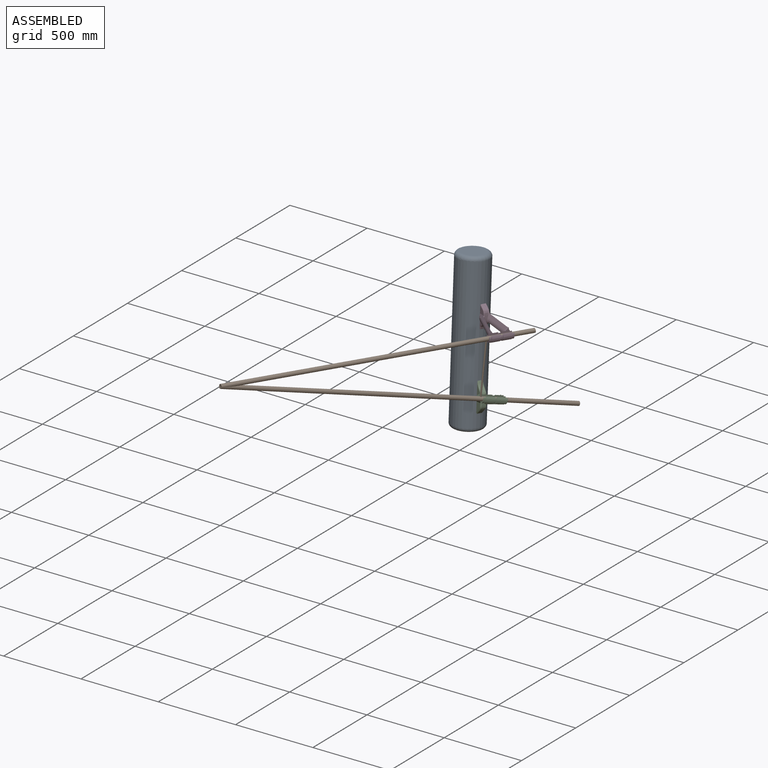
[diagram: assembled view]
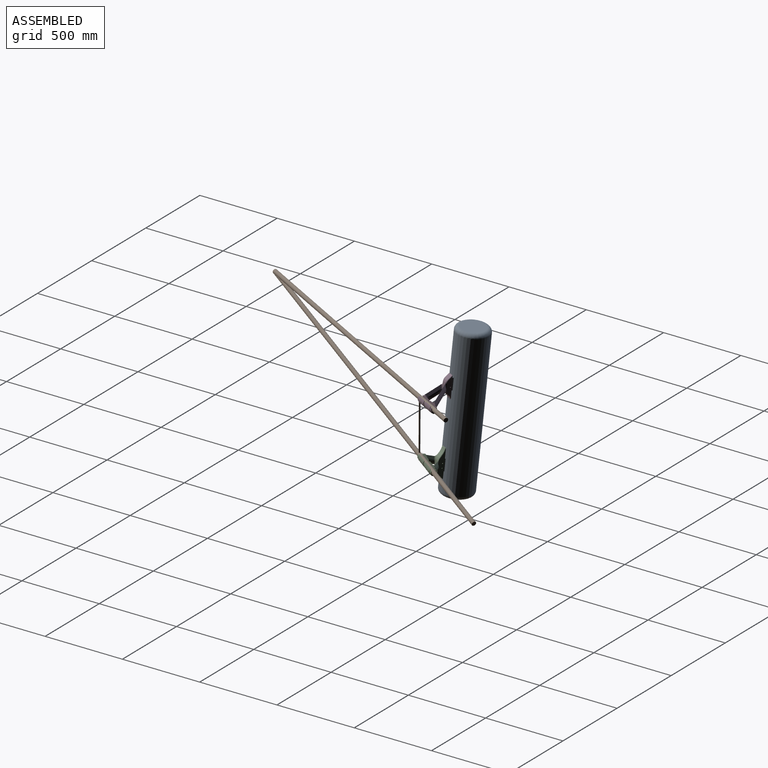
[diagram: assembled view, second angle]
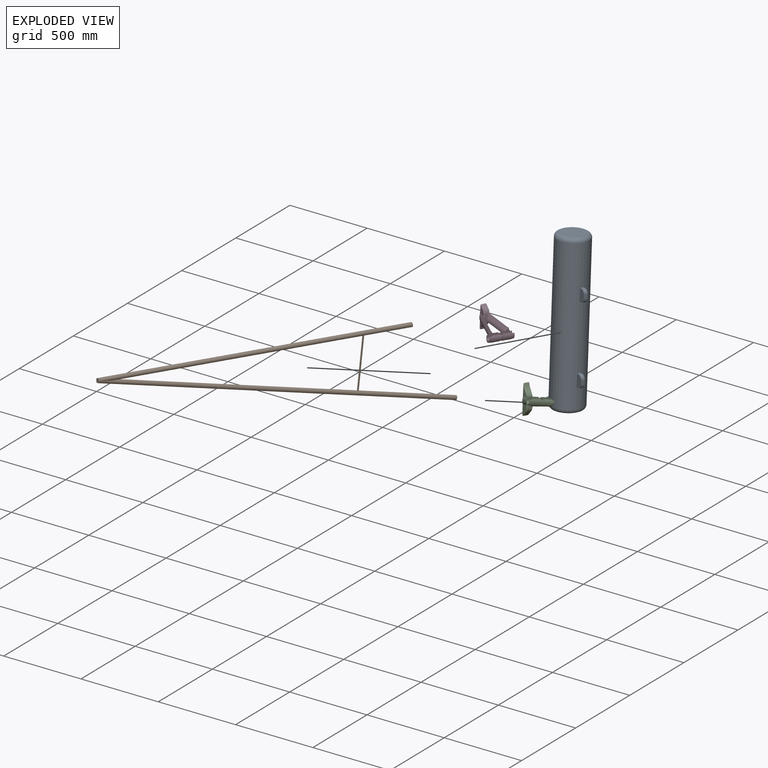
[diagram: exploded view]
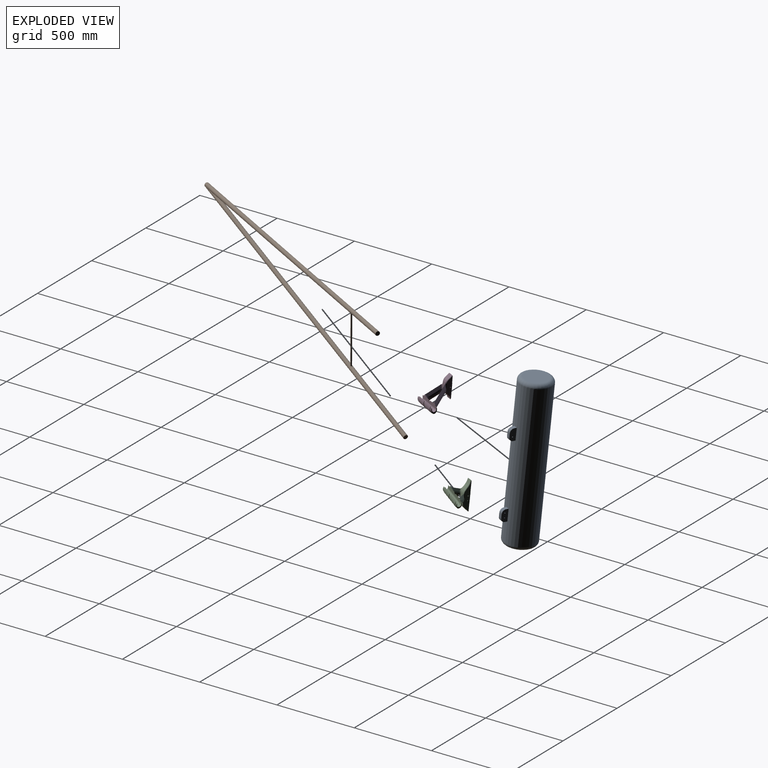
[diagram: exploded view, second angle]
ASSEMBLY  parts=4 mates=3
PART A: 27 faces, bbox 219.9x990.6x252.2 mm
  f0: plane 406.4x22.86mm, normal (0,0,1), area 9290.3mm2, adj f5,f8,f14
  f1: plane 25.4x22.86mm, normal (0,0,1), area 580.6mm2, adj f2,f3,f25,f26
  f2: plane 76.2x41.3mm, normal (-1,0,0), area 2834.6mm2, adj f1,f4,f5,f8,f17,f18,f25,f26
  f3: plane 76.2x41.3mm, normal (1,0,0), area 2834.6mm2, adj f1,f4,f5,f8,f17,f18,f25,f26
  f4: plane 22.86x15.9mm, normal (0,-1,0), area 363.5mm2, adj f2,f3,f7,f26
  f5: plane 22.86x15.9mm, normal (0,1,0), area 363.5mm2, adj f0,f2,f3,f25
  f6: plane 254x22.86mm, normal (0,0,1), area 5806.4mm2, adj f8,f15,f22
  f7: plane 127x22.86mm, normal (0,0,1), area 2903.2mm2, adj f4,f8,f20
  f8: cylinder r=101.6mm len=939.8mm, axis (0,-1,0), area 578412.2mm2, adj f0,f2,f3,f6,f7,f12,f13,f19
  f9: plane 152.4x151.76mm, normal (0,1,0), area 18233mm2, adj f21,f22
  f10: plane 152.4x151.76mm, normal (0,-1,0), area 18233mm2, adj f19,f20
  f11: plane 25.4x22.86mm, normal (0,0,1), area 580.6mm2, adj f12,f13,f23,f24
  f12: plane 76.2x41.3mm, normal (-1,0,0), area 2852.4mm2, adj f8,f11,f14,f15,f16,f23,f24
  f13: plane 76.2x41.3mm, normal (1,0,0), area 2852.4mm2, adj f8,f11,f14,f15,f16,f23,f24
  f14: plane 22.86x15.9mm, normal (0,-1,0), area 363.5mm2, adj f0,f12,f13,f23
  f15: plane 22.86x15.9mm, normal (0,1,0), area 363.5mm2, adj f6,f12,f13,f24
  f16: cylinder r=2.38mm len=22.86mm, axis (1,0,0), area 342mm2, adj f12,f13
  f17: cylinder r=2.38mm len=22.86mm, axis (1,0,0), area 342mm2, adj f2,f3
  f18: cylinder r=2.38mm len=22.86mm, axis (1,0,0), area 342mm2, adj f2,f3
  f19: torus R=76.2mm, axis (0,-1,0), area 22285.3mm2, adj f8,f10,f20
  f20: cylinder r=25.4mm len=25.4mm, axis (-1,0,0), area 868.7mm2, adj f7,f10,f19
  f21: torus R=76.2mm, axis (0,-1,0), area 22285.3mm2, adj f8,f9,f22
  f22: cylinder r=25.4mm len=25.4mm, axis (1,0,0), area 868.7mm2, adj f6,f9,f21
  f23: cylinder r=25.4mm len=25.4mm, axis (1,0,0), area 912.1mm2, adj f11,f12,f13,f14
  f24: cylinder r=25.4mm len=25.4mm, axis (-1,0,0), area 912.1mm2, adj f11,f12,f13,f15
  f25: cylinder r=25.4mm len=25.4mm, axis (-1,0,0), area 912.1mm2, adj f1,f2,f3,f5
  f26: cylinder r=25.4mm len=25.4mm, axis (1,0,0), area 912.1mm2, adj f1,f2,f3,f4
PART B: 7 faces, bbox 499.6x2217.7x26.7 mm
  f0: cylinder r=13.33mm len=1898.16mm, axis (-0.03,1,0), area 155695.2mm2, adj f1,f2,f3,f6
  f1: cylinder r=13.33mm len=2217.72mm, axis (0.18,0.98,0), area 185279mm2, adj f0,f4,f5,f6
  f2: plane 26.67x13.33mm, normal (0.03,-1,0), area 279.3mm2, adj f0,f4
  f3: plane 26.67x26.66mm, normal (-0.03,1,0), area 558.6mm2, adj f0
  f4: plane 26.67x13.11mm, normal (-0.18,-0.98,0), area 279.3mm2, adj f1,f2
  f5: plane 26.67x26.21mm, normal (0.18,0.98,0), area 558.6mm2, adj f1
  f6: cylinder r=4.76mm len=325.52mm, axis (1,0,0), area 9707.4mm2, adj f0,f1
PART C: 131 faces, bbox 199x145x156.8 mm
  f0: bspline ~8.17x4.92mm, area 0.1mm2, adj f2,f104,f122
  f1: bspline ~27.03x19.97mm, area 54.9mm2, adj f38,f83,f102
  f2: extruded ~76.83x73.18mm, area 4117.5mm2, adj f0,f10,f17,f23,f34,f35,f104,f106
  f3: plane 0.64x0.52mm, normal (0.07,0.17,0.98), area 0.2mm2, adj f4,f36,f53,f86
  f4: plane 0.62x0.49mm, normal (0.44,0.03,-0.9), area 0.2mm2, adj f3,f36,f50,f86
  f5: plane 14.62x2.89mm, normal (-0.19,-0.06,0.98), area 7.8mm2, adj f36,f37,f47,f76
  f6: plane 4.94x3.64mm, normal (-0.19,-0.06,0.98), area 3.9mm2, adj f46,f68
  f7: plane 62.73x37.64mm, normal (0.19,0.06,-0.98), area 1853.5mm2, adj f36,f46,f47,f50,f60,f70
  f8: plane 6.25x1.25mm, normal (-0.98,-0.1,-0.19), area 3.2mm2, adj f48,f49,f51,f76
  f9: plane 3.76x0.84mm, normal (0.98,0.1,0.19), area 2.3mm2, adj f48,f49,f63,f86
  f10: plane 46.3x44.64mm, normal (0.14,-0.63,0.76), area 1434.5mm2, adj f2,f17,f18,f54,f103
  f11: plane 8.26x3.38mm, normal (0.38,0.93,0), area 21.9mm2, adj f20,f27,f33,f61
  f12: plane 32.01x8.26mm, normal (0.38,0.93,0), area 266.4mm2, adj f18,f30,f32,f61
  f13: plane 16.31x8.26mm, normal (0.38,0.93,0), area 144.8mm2, adj f19,f23,f31,f61
  f14: plane 36.51x8.26mm, normal (0.38,0.93,0), area 308.3mm2, adj f21,f29,f33,f61
  f15: plane 56.13x8.26mm, normal (0.38,-0.93,0), area 501.2mm2, adj f27,f29,f33,f62
  f16: plane 56.9x8.26mm, normal (0.38,-0.93,0), area 508mm2, adj f23,f30,f32,f62
  f17: plane 64.51x64.01mm, normal (0.28,0.72,-0.64), area 1870.4mm2, adj f2,f10,f18,f19,f55,f61,f87,f103
  f18: cylinder r=4.34mm len=14.81mm, axis (-0.83,0.34,0.44), area 82.7mm2, adj f10,f12,f17,f54,f61
  f19: cylinder r=4.34mm len=10.91mm, axis (0.93,-0.38,-0.02), area 30.5mm2, adj f13,f17,f55,f61
  f20: cylinder r=10.16mm len=17.39mm, axis (-0.93,0.38,0), area 126mm2, adj f11,f21,f38,f39,f56,f61
  f21: cylinder r=10.16mm len=18.38mm, axis (0.85,-0.35,0.41), area 192.2mm2, adj f14,f20,f39,f57,f61
  f22: extruded ~38.2x34.05mm, area 1251mm2, adj f23,f24,f61,f62
  f23: plane 47.37x38.72mm, normal (0,0,-1), area 211.3mm2, adj f2,f13,f16,f22,f31,f32,f34,f35
  f24: plane 38.2x34.06mm, normal (0,0,-1), area 424.7mm2, adj f22,f59,f61,f62
  f25: plane 38.2x34.06mm, normal (0,0,1), area 424.7mm2, adj f26,f59,f61,f62
  f26: extruded ~38.2x34.05mm, area 1226.9mm2, adj f25,f27,f61,f62
  f27: plane 45.84x38.1mm, normal (0,0,1), area 204.8mm2, adj f11,f15,f26,f33,f61,f62
  f28: extruded ~38.2x34.05mm, area 1251mm2, adj f29,f30,f61,f62
  f29: plane 45.84x38.1mm, normal (0,0,-1), area 204.8mm2, adj f14,f15,f28,f33,f61,f62
  f30: plane 45.84x38.1mm, normal (0,0,1), area 204.8mm2, adj f12,f16,f28,f32,f61,f62
  f31: extruded ~33.66x16.31mm, area 331.4mm2, adj f13,f23,f35,f55
  f32: extruded ~56.9x38.09mm, area 4175.1mm2, adj f12,f16,f23,f30,f34,f54
  f33: extruded ~56.13x38.09mm, area 4069.2mm2, adj f11,f14,f15,f27,f29,f56,f57,f58
  f34: bspline ~34.85x26.3mm, area 281.9mm2, adj f2,f23,f32,f54
  f35: bspline ~22.25x17.78mm, area 101.7mm2, adj f2,f23,f31,f55
  f36: plane 60.06x17.86mm, normal (-0.11,0.99,0.04), area 454.1mm2, adj f3,f4,f5,f7,f37,f38,f40,f41
  f37: extruded ~109.85x63.69mm, area 4009.5mm2, adj f5,f36,f38,f39,f58,f60,f76,f96
  f38: plane 89.25x56.91mm, normal (0.07,0.17,0.98), area 1520.8mm2, adj f1,f20,f36,f37,f39,f52,f56,f83
  f39: plane 43.58x31.02mm, normal (0.44,0.03,-0.9), area 712.7mm2, adj f20,f21,f37,f38,f57,f101,f102
  f40: plane 3.52x1.25mm, normal (-0.19,0.08,0.98), area 1.6mm2, adj f36,f42,f43
  f41: plane 0.06x0.02mm, normal (0.19,-0.08,-0.98), area 0mm2, adj f36,f42,f43
  f42: plane 6.34x1.24mm, normal (0.92,0.36,0.15), area 3mm2, adj f36,f40,f41,f43
  f43: plane 6.22x4.43mm, normal (-0.34,0.93,-0.14), area 11.2mm2, adj f36,f40,f41,f42
  f44: cylinder r=2.38mm len=7.16mm, axis (-0.19,-0.06,0.98), area 51.5mm2, adj f49,f51,f95
  f45: cylinder r=2.38mm len=7.17mm, axis (-0.19,-0.06,0.98), area 95mm2, adj f49,f51
  f46: cylinder r=2.38mm len=7.17mm, axis (-0.19,-0.06,0.98), area 53.2mm2, adj f6,f7,f68,f89
  f47: plane 31.08x7.62mm, normal (-0.98,-0.1,-0.19), area 10.9mm2, adj f5,f7,f36,f70,f73,f76
  f48: plane 59.63x17.86mm, normal (-0.11,0.99,0.04), area 381.7mm2, adj f8,f9,f49,f51,f63
  f49: plane 157.85x44.58mm, normal (-0.19,-0.06,0.98), area 3253.8mm2, adj f8,f9,f44,f45,f48,f71,f72,f76
  f50: plane 30.33x4.43mm, normal (0.98,0.1,0.19), area 9.3mm2, adj f4,f7,f36,f70,f86,f88
  f51: plane 170.06x50.86mm, normal (0.19,0.06,-0.98), area 4380.3mm2, adj f8,f44,f45,f48,f63,f76,f86,f95
  f52: plane 10.31x2.02mm, normal (-0.19,-0.06,0.98), area 6.1mm2, adj f36,f38,f53,f86
  f53: plane 3x0.79mm, normal (0.98,0.1,0.19), area 1.8mm2, adj f3,f36,f52,f86
  f54: bspline ~32.21x13.7mm, area 246.8mm2, adj f10,f18,f32,f34
  f55: bspline ~26.03x11.76mm, area 66.5mm2, adj f17,f19,f31,f35
  f56: bspline ~28.45x12.21mm, area 241.9mm2, adj f20,f33,f38,f58
  f57: bspline ~22.88x20.23mm, area 217mm2, adj f21,f33,f39,f58
  f58: bspline ~34.39x29.31mm, area 983.7mm2, adj f33,f37,f56,f57
  f59: cylinder r=13.33mm len=152.4mm, axis (0,0,-1), area 6384.5mm2, adj f24,f25,f61,f62
  f60: cylinder r=2.38mm len=12.09mm, axis (0.19,0.06,-0.98), area 170.2mm2, adj f7,f37
  f61: plane 155.59x30.61mm, normal (0,-1,0), area 2940.4mm2, adj f11,f12,f13,f14,f17,f18,f19,f20
  f62: plane 152.4x20.44mm, normal (0,1,0), area 2886.8mm2, adj f15,f16,f22,f23,f24,f25,f26,f27
  f63: cylinder r=2.54mm len=3.01mm, axis (-0.11,0.99,0.04), area 2.4mm2, adj f9,f48,f51,f86
  f64: plane 9.57x4.58mm, normal (0.43,-0.9,0.02), area 13.4mm2, adj f65,f78,f111,f130
  f65: plane 24.48x13.61mm, normal (0.43,-0.9,0.02), area 241.6mm2, adj f64,f85,f112,f121
  f66: plane 3.76x3.69mm, normal (-0.56,-0.81,-0.16), area 12.8mm2, adj f67,f79,f108,f127
  f67: plane 22.86x7.42mm, normal (-0.56,-0.81,-0.16), area 88.8mm2, adj f66,f84,f109,f119
  f68: cylinder r=2.52mm len=7.22mm, axis (0.19,0.06,-0.98), area 41.4mm2, adj f6,f46,f74,f89,f97
  f69: bspline ~11.72x10.94mm, area 39.4mm2, adj f70,f73,f76,f81
  f70: bspline ~148.48x45.58mm, area 849.7mm2, adj f7,f47,f50,f69,f73,f80,f82,f88
  f71: bspline ~10.32x9.59mm, area 39.4mm2, adj f49,f72,f76,f81
  f72: bspline ~148.48x45.9mm, area 986.8mm2, adj f49,f71,f80,f82,f90,f92,f93,f94
  f73: plane 41.58x29.03mm, normal (0.19,0.06,-0.98), area 684.9mm2, adj f47,f69,f70,f76
  f74: plane 63.34x34.19mm, normal (-0.19,-0.06,0.98), area 1349.6mm2, adj f68,f76,f96,f98,f118,f119
  f75: bspline ~7.25x6.41mm, area 0.6mm2, adj f83,f99,f116
  f76: plane 69.04x51.9mm, normal (-0.11,0.99,0.04), area 836.9mm2, adj f5,f8,f37,f47,f49,f51,f69,f71
  f77: bspline ~52.1x26.33mm, area 190.6mm2, adj f79,f83,f105,f126
  f78: bspline ~10.54x5.8mm, area 15.3mm2, adj f64,f85,f87,f130
  f79: bspline ~6.46x4.86mm, area 24.7mm2, adj f66,f77,f84,f127
  f80: extruded ~46.01x25.59mm, area 721.2mm2, adj f70,f72,f81,f93
  f81: extruded ~14.51x8.51mm, area 105.9mm2, adj f69,f71,f76,f80
  f82: extruded ~42.54x32.42mm, area 477mm2, adj f49,f70,f72,f86,f88,f90
  f83: extruded ~156.08x53.55mm, area 3355.5mm2, adj f1,f38,f75,f77,f84,f85,f100,f101
  f84: extruded ~23.22x10.12mm, area 171.6mm2, adj f67,f79,f83,f119
  f85: extruded ~24.75x14.57mm, area 275.6mm2, adj f65,f78,f83,f87,f121
  f86: plane 86.14x48.57mm, normal (-0.11,0.99,0.04), area 1165mm2, adj f3,f4,f9,f38,f49,f50,f51,f52
  f87: bspline ~50.53x35.7mm, area 338mm2, adj f17,f78,f85,f103,f129
  f88: plane 60.68x37.55mm, normal (0.19,0.06,-0.98), area 808.3mm2, adj f50,f70,f82,f86
  f89: plane 4.6x2.33mm, normal (0.19,0.06,-0.98), area 1.8mm2, adj f46,f68
  f90: extruded ~44.92x33.88mm, area 768.7mm2, adj f70,f72,f82,f92
  f91: plane 64.07x32.8mm, normal (-0.19,-0.06,0.98), area 884.7mm2, adj f38,f86,f120,f121
  f92: plane 18.89x3.71mm, normal (0.98,0.1,0.19), area 12.5mm2, adj f70,f72,f90,f94
  f93: plane 20.77x4.1mm, normal (-0.98,-0.1,-0.19), area 26.6mm2, adj f70,f72,f80,f94
  f94: plane 64.94x33.72mm, normal (-0.11,0.99,0.04), area 1272.2mm2, adj f70,f72,f92,f93
  f95: cylinder r=2.52mm len=7.14mm, axis (0.19,0.06,-0.98), area 38.9mm2, adj f44,f49,f51
  f96: bspline ~18.6x7.16mm, area 40.2mm2, adj f37,f74,f76,f97
  f97: bspline ~5.37x5.26mm, area 16.3mm2, adj f37,f68,f96,f98
  f98: bspline ~30.53x12.72mm, area 119.5mm2, adj f37,f74,f97,f114,f115,f116,f117
  f99: bspline ~7.67x6.17mm, area 0.6mm2, adj f75,f100,f115
  f100: bspline ~34.95x12.03mm, area 302.2mm2, adj f37,f83,f99,f101,f114
  f101: bspline ~13.09x12.47mm, area 107.6mm2, adj f39,f83,f100,f102
  f102: bspline ~19.35x17.28mm, area 131.1mm2, adj f1,f38,f39,f101
  f103: bspline ~81.74x42.76mm, area 223.9mm2, adj f10,f17,f83,f87,f104
  f104: bspline ~31.21x17.55mm, area 242.1mm2, adj f0,f2,f83,f103,f105,f123
  f105: bspline ~8.82x6.76mm, area 9.7mm2, adj f77,f104,f124,f125
  f106: bspline ~30.44x15.1mm, area 86.8mm2, adj f2,f17,f51,f107,f122,f123,f124,f128
  f107: cylinder r=5.08mm len=1.65mm, axis (0.96,-0.22,0.17), area 0.2mm2, adj f51,f106,f128
  f108: cylinder r=1.27mm len=6.42mm, axis (-0.19,-0.06,0.98), area 14.7mm2, adj f66,f76,f109,f127
  f109: cylinder r=1.27mm len=23.96mm, axis (-0.19,-0.06,0.98), area 73.9mm2, adj f67,f76,f108,f110,f119
  f110: cylinder r=1.27mm len=4.34mm, axis (-0.19,-0.06,0.98), area 5.3mm2, adj f76,f109,f119
  f111: cylinder r=1.27mm len=5.74mm, axis (0.19,0.06,-0.98), area 12.3mm2, adj f64,f86,f112,f130
  f112: cylinder r=1.27mm len=23.88mm, axis (0.19,0.06,-0.98), area 85.5mm2, adj f65,f86,f111,f113,f121
  f113: cylinder r=1.27mm len=4.45mm, axis (0.19,0.06,-0.98), area 6.6mm2, adj f86,f112,f121
  f114: bspline ~14.23x13.37mm, area 68.3mm2, adj f37,f98,f100,f115
  f115: bspline ~8.22x7.88mm, area 12.5mm2, adj f98,f99,f114,f116
  f116: bspline ~8.57x8.46mm, area 10.8mm2, adj f75,f98,f115,f117
  f117: bspline ~11.56x10.37mm, area 50.6mm2, adj f83,f98,f116,f118
  f118: bspline ~69.09x32.62mm, area 846.4mm2, adj f74,f83,f117,f119
  f119: bspline ~17.52x16.13mm, area 127.3mm2, adj f67,f74,f76,f84,f109,f110,f118
  f120: bspline ~42.55x37.86mm, area 385.6mm2, adj f38,f83,f91,f121
  f121: bspline ~26.36x17.25mm, area 242.9mm2, adj f65,f85,f86,f91,f112,f113,f120
  f122: bspline ~7.12x6.75mm, area 19.5mm2, adj f0,f2,f106,f123
  f123: bspline ~5.94x4.85mm, area 16.9mm2, adj f104,f106,f122,f124
  f124: bspline ~4.28x4.13mm, area 1.3mm2, adj f105,f106,f123,f125
  f125: bspline ~9.96x6.06mm, area 31.4mm2, adj f51,f105,f124,f126
  f126: bspline ~71.81x44.92mm, area 269.5mm2, adj f51,f77,f125,f127
  f127: bspline ~12.31x10.31mm, area 58.5mm2, adj f51,f66,f76,f79,f108,f126
  f128: bspline ~12.42x9.49mm, area 8.3mm2, adj f17,f106,f107,f129
  f129: bspline ~76.94x43.21mm, area 584.7mm2, adj f17,f51,f87,f128,f130
  f130: bspline ~22.02x15.38mm, area 174.8mm2, adj f51,f64,f78,f86,f111,f129
PART D: 132 faces, bbox 191.7x236x157.2 mm
  f0: bspline ~64.16x40.65mm, area 97.3mm2, adj f5,f67,f87,f123
  f1: plane 3x1.83mm, normal (0.23,-0.14,-0.96), area 0.1mm2, adj f42,f102,f121
  f2: plane 42.99x34.04mm, normal (-0.08,0.99,0.06), area 555.2mm2, adj f10,f12,f13,f38,f39,f56,f57,f58
  f3: bspline ~61.92x37.19mm, area 428.5mm2, adj f55,f64,f71,f91,f109
  f4: plane 5.12x2.4mm, normal (0.82,-0.57,-0.05), area 11.8mm2, adj f5,f67,f96,f116
  f5: extruded ~128.38x42.68mm, area 2658.7mm2, adj f0,f4,f55,f66,f72,f95,f101,f124
  f6: bspline ~24.56x17mm, area 36.3mm2, adj f62,f69,f85,f99
  f7: plane 104.32x76.89mm, normal (0.14,0.48,-0.86), area 3245.5mm2, adj f9,f11,f22,f23,f49,f53,f100
  f8: extruded ~21.07x15.87mm, area 0mm2, adj f10,f44
  f9: extruded ~122.9x84.85mm, area 6095.8mm2, adj f7,f11,f48,f50,f91,f92,f93,f94
  f10: plane 106.32x36.09mm, normal (-0.01,0.06,-1), area 2074.1mm2, adj f2,f8,f13,f37,f43,f44,f52,f58
  f11: plane 96.57x72.81mm, normal (0.25,-0.61,0.75), area 2977.5mm2, adj f7,f9,f23,f100,f101
  f12: plane 2.08x1.86mm, normal (1,0.09,-0.01), area 1.3mm2, adj f2,f37,f38,f42,f108
  f13: plane 2.67x0.61mm, normal (1,0.09,-0.01), area 1.2mm2, adj f2,f10,f37,f39
  f14: plane 8.26x3.38mm, normal (0.38,0.93,0), area 16.1mm2, adj f21,f25,f35,f53
  f15: plane 28.32x8.27mm, normal (0.38,0.93,0), area 228.6mm2, adj f23,f30,f33,f50,f53
  f16: plane 31.75x8.26mm, normal (0.38,0.93,0), area 272.5mm2, adj f20,f29,f34,f53
  f17: plane 56.9x8.26mm, normal (0.38,-0.93,0), area 508mm2, adj f30,f32,f33,f54
  f18: plane 56.13x8.26mm, normal (0.38,-0.93,0), area 501.2mm2, adj f25,f29,f34,f54
  f19: plane 8.26x3.38mm, normal (0.38,0.93,0), area 9.1mm2, adj f22,f32,f33,f53
  f20: cylinder r=8.38mm len=22.73mm, axis (0.89,-0.37,0.27), area 225.2mm2, adj f16,f21,f40,f41,f46,f53
  f21: cylinder r=8.38mm len=22.3mm, axis (-0.9,0.37,0.23), area 205.8mm2, adj f14,f20,f40,f47,f53
  f22: cylinder r=8.38mm len=19.32mm, axis (0.92,-0.38,-0.06), area 121.6mm2, adj f7,f19,f49,f53
  f23: cylinder r=8.38mm len=27.91mm, axis (-0.79,0.32,0.52), area 357.7mm2, adj f7,f11,f15,f50,f53
  f24: extruded ~38.2x34.05mm, area 1226.9mm2, adj f25,f27,f53,f54
  f25: plane 45.84x38.14mm, normal (0,0,1), area 205.1mm2, adj f14,f18,f24,f34,f35,f45,f53,f54
  f26: plane 38.2x34.06mm, normal (0,0,-1), area 424.7mm2, adj f31,f51,f53,f54
  f27: plane 38.2x34.06mm, normal (0,0,1), area 424.7mm2, adj f24,f51,f53,f54
  f28: extruded ~38.2x34.05mm, area 1251mm2, adj f29,f30,f53,f54
  f29: plane 45.84x38.1mm, normal (0,0,-1), area 204.8mm2, adj f16,f18,f28,f34,f53,f54
  f30: plane 45.84x38.1mm, normal (0,0,1), area 204.8mm2, adj f15,f17,f28,f33,f53,f54
  f31: extruded ~38.2x34.05mm, area 1251mm2, adj f26,f32,f53,f54
  f32: plane 45.84x38.1mm, normal (0,0,-1), area 204.8mm2, adj f17,f19,f31,f33,f53,f54
  f33: extruded ~56.9x38.09mm, area 4391mm2, adj f15,f17,f19,f30,f32,f48,f49
  f34: extruded ~56.13x38.09mm, area 4441.6mm2, adj f16,f18,f25,f29,f45,f46
  f35: extruded ~2.44x0.88mm, area 0.9mm2, adj f14,f25,f45,f47
  f36: extruded ~161.92x85.22mm, area 6252.5mm2, adj f37,f40,f41,f45,f52,f125,f126,f127
  f37: plane 52.76x11.03mm, normal (-0.09,0.99,0.06), area 389mm2, adj f10,f12,f13,f36,f38,f39,f40,f42
  f38: plane 4.23x0.98mm, normal (0.23,-0.04,0.97), area 2mm2, adj f2,f12,f37,f39
  f39: plane 4.26x1mm, normal (0.23,-0.14,-0.96), area 2mm2, adj f2,f13,f37,f38
  f40: plane 136.69x64.26mm, normal (0.23,-0.04,0.97), area 2865.8mm2, adj f20,f21,f36,f37,f41,f47,f52,f102
  f41: plane 89.08x55.05mm, normal (0.23,-0.14,-0.96), area 1941.3mm2, adj f20,f36,f40,f46,f122,f123,f124
  f42: plane 44.87x35.87mm, normal (0.01,-0.06,1), area 1021.5mm2, adj f1,f12,f37,f87,f102,f108,f121
  f43: plane 0.63x0.13mm, normal (-1,-0.09,0.01), area 0mm2, adj f10,f37,f131
  f44: plane 22.19x2.95mm, normal (1,0.09,-0.01), area 6.6mm2, adj f8,f10
  f45: bspline ~36.58x29.52mm, area 812.4mm2, adj f25,f34,f35,f36,f46,f47
  f46: bspline ~10.94x9.98mm, area 14.7mm2, adj f20,f34,f41,f45
  f47: bspline ~10.14x9.58mm, area 19.8mm2, adj f21,f35,f40,f45
  f48: bspline ~36.89x35.2mm, area 795.8mm2, adj f9,f33,f49,f50
  f49: bspline ~10.51x7.47mm, area 41.1mm2, adj f7,f22,f33,f48
  f50: bspline ~15.52x15.51mm, area 54.2mm2, adj f9,f15,f23,f48
  f51: cylinder r=13.33mm len=152.4mm, axis (0,0,-1), area 6384.5mm2, adj f26,f27,f53,f54
  f52: cylinder r=2.38mm len=10.49mm, axis (0.01,-0.06,1), area 149.5mm2, adj f10,f36,f40
  f53: plane 157.23x43.47mm, normal (0,-1,0), area 3154.1mm2, adj f7,f14,f15,f16,f19,f20,f21,f22
  f54: plane 152.4x20.44mm, normal (0,1,0), area 2886.8mm2, adj f17,f18,f24,f25,f26,f27,f28,f29
  f55: bspline ~32.42x24.65mm, area 49.7mm2, adj f3,f5,f71,f93
  f56: plane 29.4x28.35mm, normal (0.01,-0.06,1), area 476.5mm2, adj f2,f59,f75
  f57: extruded ~34.81x33.47mm, area 687mm2, adj f2,f58,f59,f82
  f58: bspline ~129.52x51.1mm, area 916.4mm2, adj f2,f10,f57,f61,f63,f80,f82,f83
  f59: bspline ~129.52x51.4mm, area 828.7mm2, adj f2,f56,f57,f61,f63,f65,f75,f76
  f60: plane 36.43x20.98mm, normal (0.01,-0.06,1), area 321mm2, adj f89,f90,f103,f128
  f61: plane 51.54x34.07mm, normal (-0.08,0.99,0.06), area 800.7mm2, adj f10,f58,f59,f63,f65,f76,f103,f104
  f62: extruded ~23.36x15.67mm, area 202.2mm2, adj f6,f68,f98
  f63: extruded ~41.75x28.25mm, area 705.5mm2, adj f58,f59,f61,f80,f84
  f64: plane 123.62x38.66mm, normal (-0.01,0.06,-1), area 2875.6mm2, adj f3,f79,f85,f92,f111
  f65: plane 30.03x25.28mm, normal (0.01,-0.06,1), area 402.4mm2, adj f59,f61,f76
  f66: bspline ~25.18x20.04mm, area 39.1mm2, adj f5,f70,f89,f126
  f67: plane 2.24x1.53mm, normal (0.82,-0.57,-0.05), area 3.4mm2, adj f0,f4,f88,f114
  f68: plane 15.07x2.99mm, normal (0.82,-0.57,-0.05), area 37.8mm2, adj f62,f69,f97,f119
  f69: plane 2.24x1.53mm, normal (0.82,-0.57,-0.05), area 3.4mm2, adj f6,f68,f86,f117
  f70: plane 11.12x2.92mm, normal (-0.25,-0.97,-0.05), area 14.6mm2, adj f66,f72,f90,f105
  f71: plane 11.12x2.92mm, normal (-0.25,-0.97,-0.05), area 14.6mm2, adj f3,f55,f72,f107
  f72: plane 24.41x11.43mm, normal (-0.25,-0.97,-0.05), area 276.6mm2, adj f5,f70,f71,f106
  f73: plane 45.63x6.69mm, normal (-0.09,0.99,0.06), area 288.9mm2, adj f74,f75,f76,f77,f78
  f74: cylinder r=2.54mm len=2.66mm, axis (-0.09,0.99,0.06), area 2.7mm2, adj f2,f73,f75,f77,f111
  f75: plane 28.23x3.87mm, normal (1,0.09,-0.01), area 8.6mm2, adj f2,f56,f59,f73,f74,f78
  f76: plane 27.65x6.44mm, normal (-1,-0.09,0.01), area 8.6mm2, adj f59,f61,f65,f73,f77,f78,f111
  f77: plane 43.11x4.69mm, normal (-0.01,0.06,-1), area 44.6mm2, adj f73,f74,f76,f111
  f78: plane 48.67x32.87mm, normal (0.01,-0.06,1), area 1298.4mm2, adj f59,f73,f75,f76,f79
  f79: cylinder r=2.38mm len=6.89mm, axis (0.01,-0.06,1), area 98.8mm2, adj f64,f78
  f80: plane 12.96x1.02mm, normal (-1,-0.09,0.01), area 3.3mm2, adj f58,f63,f83,f84
  f81: plane 7.99x6.76mm, normal (1,0.09,-0.01), area 35.7mm2, adj f59,f83,f84
  f82: plane 19.59x1.97mm, normal (1,0.09,-0.01), area 14.6mm2, adj f57,f58,f59,f83
  f83: plane 45.8x21.86mm, normal (-0.09,0.99,0.06), area 963.9mm2, adj f58,f59,f80,f81,f82
  f84: extruded ~9.79x9.54mm, area 42.4mm2, adj f59,f63,f80,f81
  f85: bspline ~111.18x98.33mm, area 420.6mm2, adj f6,f64,f86,f94,f100,f113
  f86: cylinder r=5.08mm len=5.32mm, axis (-0.57,-0.82,-0.04), area 9.8mm2, adj f69,f85,f115
  f87: bspline ~70.13x56.26mm, area 515.4mm2, adj f0,f42,f88,f110,f121,f122
  f88: cylinder r=5.08mm len=5.36mm, axis (-0.57,-0.82,-0.04), area 9.8mm2, adj f67,f87,f112
  f89: bspline ~43.91x28.38mm, area 236.9mm2, adj f60,f66,f90,f127
  f90: cylinder r=5.08mm len=12.43mm, axis (-0.97,0.25,0.03), area 61.7mm2, adj f60,f70,f89,f104
  f91: bspline ~18.79x10.07mm, area 125.1mm2, adj f3,f9,f92,f93
  f92: bspline ~16.31x5.4mm, area 50mm2, adj f9,f64,f91,f94
  f93: bspline ~9.4x5.6mm, area 8.5mm2, adj f9,f55,f91,f95
  f94: bspline ~6.51x4.17mm, area 8.1mm2, adj f9,f85,f92,f100
  f95: bspline ~35.43x12.84mm, area 278.1mm2, adj f5,f9,f93,f101
  f96: cylinder r=7.62mm len=3.42mm, axis (-0.53,-0.73,-0.42), area 6mm2, adj f4,f97,f101,f118
  f97: cylinder r=7.62mm len=4.6mm, axis (0.52,0.71,0.48), area 9.6mm2, adj f68,f96,f98,f101,f118,f120
  f98: bspline ~32.75x25.11mm, area 94.3mm2, adj f62,f97,f99,f101
  f99: bspline ~12.12x10.38mm, area 9.9mm2, adj f6,f98,f100,f101
  f100: bspline ~58.85x21.45mm, area 305.4mm2, adj f7,f11,f85,f94,f99,f101
  f101: bspline ~85.85x61.38mm, area 442.9mm2, adj f5,f11,f95,f96,f97,f98,f99,f100
  f102: cylinder r=7.62mm len=26.37mm, axis (-0.08,1,0.06), area 41.9mm2, adj f1,f37,f40,f42
  f103: cylinder r=1.52mm len=37.66mm, axis (-1,-0.08,0.01), area 89.3mm2, adj f60,f61,f104,f129,f130
  f104: bspline ~21.97x6.41mm, area 46mm2, adj f61,f90,f103,f105
  f105: cylinder r=1.52mm len=3.07mm, axis (-0.01,0.06,-1), area 5.4mm2, adj f61,f70,f104,f106
  f106: cylinder r=1.52mm len=24.26mm, axis (-0.01,0.06,-1), area 103.3mm2, adj f61,f72,f105,f107
  f107: cylinder r=1.52mm len=3.07mm, axis (-0.01,0.06,-1), area 5.4mm2, adj f61,f71,f106,f109
  f108: cylinder r=1.52mm len=37.49mm, axis (-1,-0.08,0.01), area 89.7mm2, adj f2,f12,f42,f110
  f109: bspline ~20.36x8.66mm, area 46mm2, adj f3,f61,f107,f111
  f110: bspline ~3.07x1.87mm, area 1.3mm2, adj f2,f87,f108,f112
  f111: cylinder r=1.52mm len=123.72mm, axis (1,0.08,-0.01), area 230.5mm2, adj f2,f61,f64,f74,f76,f77,f109,f113
  f112: bspline ~8.01x6.59mm, area 23.3mm2, adj f2,f88,f110,f114
  f113: bspline ~3.07x1.83mm, area 1.3mm2, adj f2,f85,f111,f115
  f114: cylinder r=1.52mm len=2.47mm, axis (0.01,-0.06,1), area 4.4mm2, adj f2,f67,f112,f116
  f115: bspline ~5.79x5.11mm, area 23.3mm2, adj f2,f86,f113,f117
  f116: cylinder r=1.52mm len=4.09mm, axis (0.01,-0.06,1), area 13.6mm2, adj f2,f4,f114,f118
  f117: cylinder r=1.52mm len=2.47mm, axis (0.01,-0.06,1), area 4.4mm2, adj f2,f69,f115,f119
  f118: bspline ~3.01x2.62mm, area 8.7mm2, adj f2,f96,f97,f116,f120
  f119: cylinder r=1.52mm len=15.12mm, axis (0.01,-0.06,1), area 51.7mm2, adj f2,f68,f117,f120
  f120: bspline ~3.46x2.38mm, area 9.5mm2, adj f2,f97,f118,f119
  f121: bspline ~22.68x15.81mm, area 81.5mm2, adj f1,f40,f42,f87,f122
  f122: bspline ~8.14x8.03mm, area 8.1mm2, adj f41,f87,f121,f123
  f123: bspline ~15.23x10.04mm, area 57.4mm2, adj f0,f41,f122,f124
  f124: bspline ~23.56x12.13mm, area 170.1mm2, adj f5,f41,f123,f125
  f125: bspline ~27.14x15.95mm, area 291.1mm2, adj f5,f36,f124,f126
  f126: bspline ~9.22x6.64mm, area 10.2mm2, adj f36,f66,f125,f127
  f127: bspline ~14.96x8.64mm, area 70.8mm2, adj f36,f89,f126,f128
  f128: bspline ~43.14x25.42mm, area 124mm2, adj f36,f60,f127,f129
  f129: bspline ~6.03x5.61mm, area 10.7mm2, adj f36,f103,f128,f130
  f130: bspline ~4.71x2.96mm, area 5mm2, adj f37,f103,f129,f131
  f131: bspline ~6.78x4.56mm, area 10.3mm2, adj f10,f37,f43,f61,f130
PLACE A rot(axis=(0.71,0.51,0.49),103.4deg) t=(-808.96,399.64,-393.91)mm
PLACE B rot(axis=(0.18,0.95,-0.25),96.2deg) t=(-1445.42,-1075.21,51.89)mm
PLACE C rot(axis=(0.45,-0.69,0.56),94deg) t=(-740.89,372.11,-386.09)mm
PLACE D rot(axis=(0.48,-0.74,0.47),102.9deg) t=(-715.5,392.09,-29.72)mm
MATE fastened A.f17 <-> C.f45  axis (0.39,0.92,-0.07) through (-813.75,447.46,-420.75)mm
MATE revolute B.f1 <-> C.f59  axis (0.42,0.87,-0.26) through (-751.62,350.07,-379.42)mm
MATE fastened D.f51 <-> B.f0  axis (-0.44,-0.89,0.05) through (-726.8,369.37,-28.45)mm
